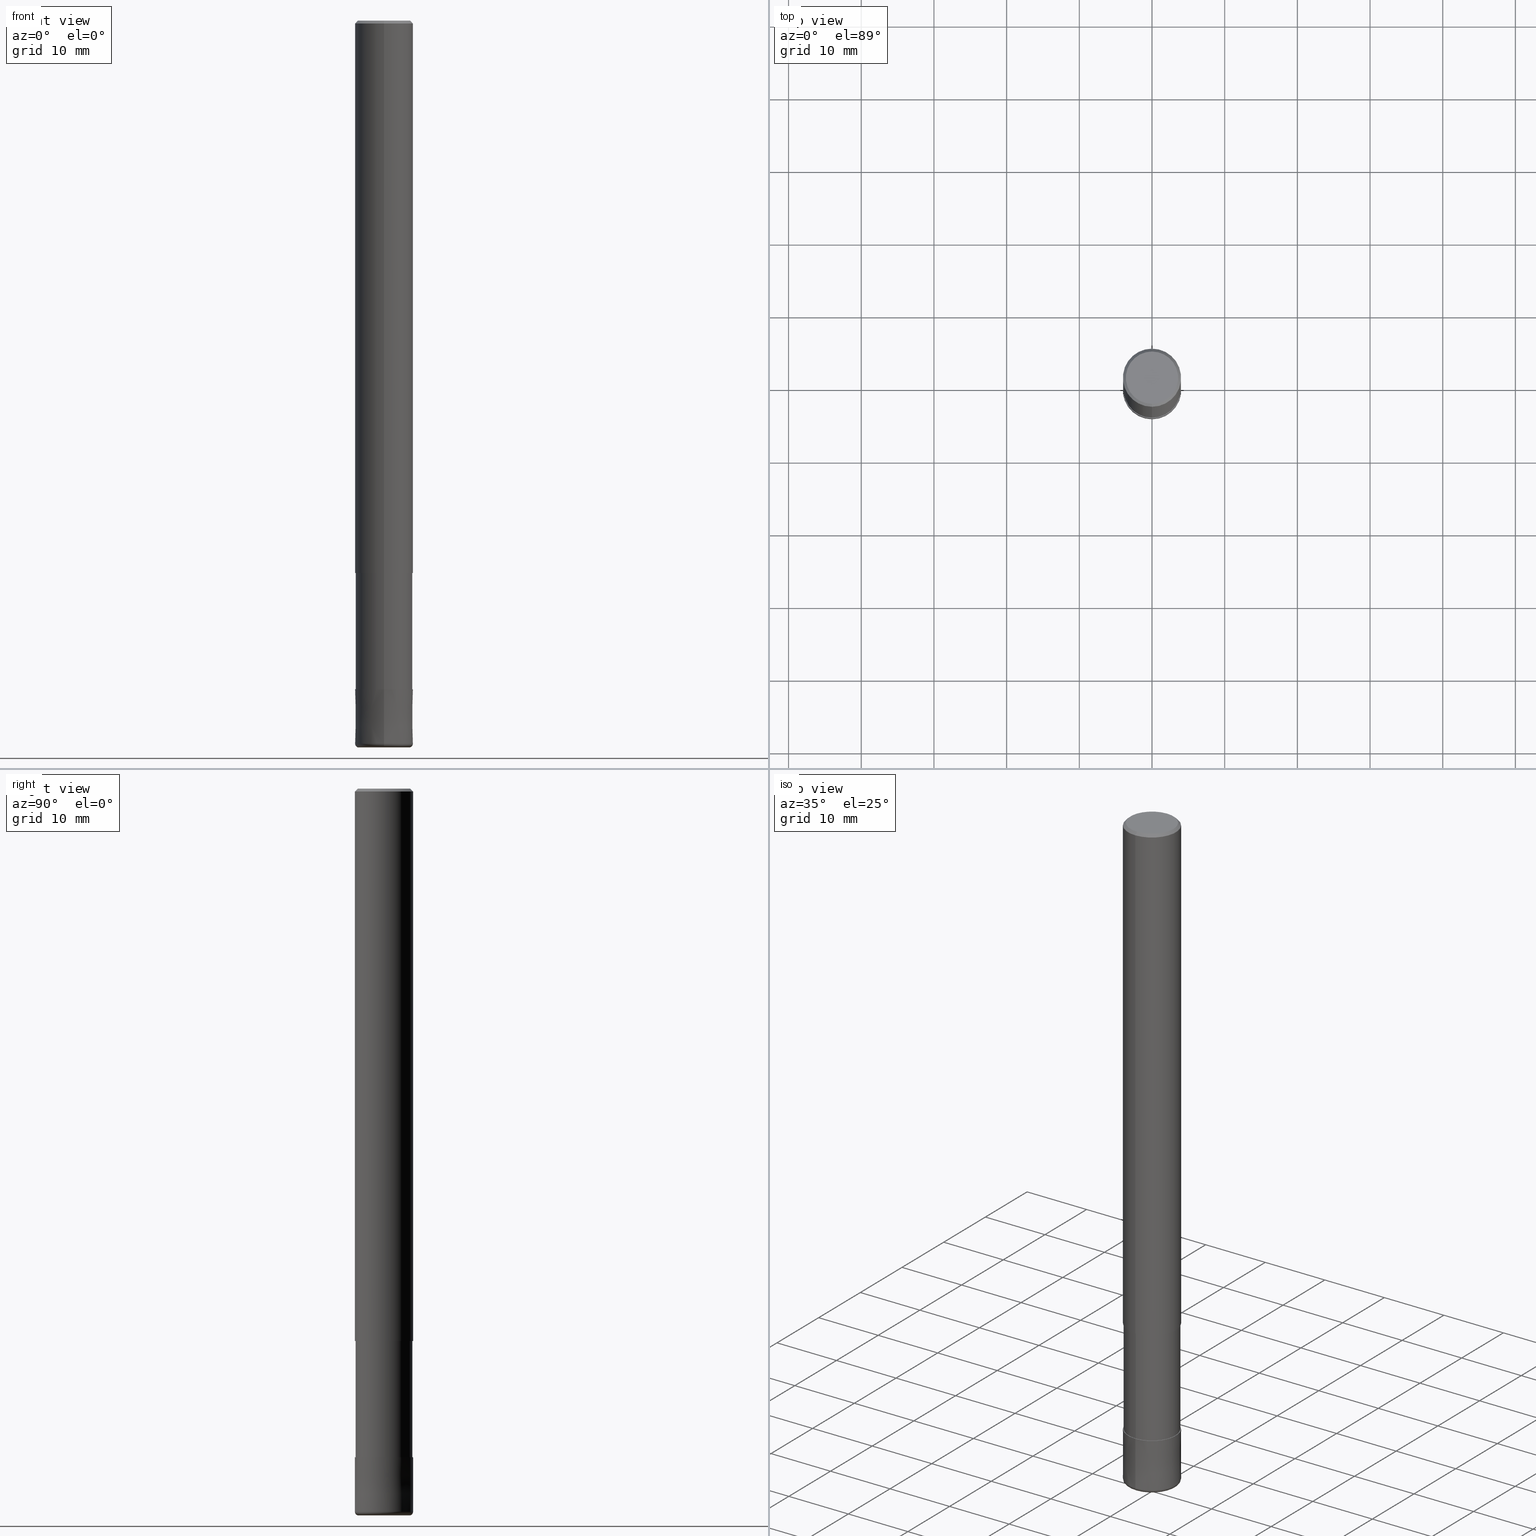
[diagram: canonical four-view strip — front | top / right | iso, engineering-drawing reading convention]
A machine part, canonical four-view strip (front | top / right | iso — engineering-drawing reading convention). The complete STEP part file that produces these views, byte-faithful:
ISO-10303-21;
HEADER;
FILE_DESCRIPTION(('no description'),'unknown implementation level');
FILE_NAME('HRRS4080-05-24-Huellk.stp','  ',('CIMSOURCE GmbH'),('CADClick - KiM GmbH - www.kimweb.de'),'unknown preprocess','ACIS','unknown authorization');
FILE_SCHEMA(('automotive_design'));
ENDSEC;
DATA;
#1=MECHANICAL_DESIGN_GEOMETRIC_PRESENTATION_REPRESENTATION(' ',(#14,#15,#16,#17,#18,#19,#20,#21,#22,#23,#24,#25,#26,#27,#28,#29,#30,#31,#32,#33,#34,#35,#36,#37,#38,#39,#40,#41,#42,#43,#44,#45,#46,#47,#48,#49,#50,#51,#52,#53,#54,#55,#56,#57,#58,#59,#60,#61,#62,#63,#64,#65,#66,#67,#68,#69,#70,#71,#72),#10);
#2=PRODUCT_DEFINITION_CONTEXT('',#73,'design');
#3=APPLICATION_PROTOCOL_DEFINITION('INTERNATIONAL STANDARD','automotive_design',1994,#73);
#4=PRODUCT_CATEGORY_RELATIONSHIP('NONE','NONE',#74,#75);
#5=SHAPE_DEFINITION_REPRESENTATION(#76,#77);
#6=PRODUCT_DEFINITION_CONTEXT('',#78,'design');
#7=APPLICATION_PROTOCOL_DEFINITION('INTERNATIONAL STANDARD','automotive_design',1994,#78);
#8=PRODUCT_CATEGORY_RELATIONSHIP('NONE','NONE',#79,#80);
#9=SHAPE_DEFINITION_REPRESENTATION(#81,#82);
#10= (GEOMETRIC_REPRESENTATION_CONTEXT(3)GLOBAL_UNCERTAINTY_ASSIGNED_CONTEXT((#85))GLOBAL_UNIT_ASSIGNED_CONTEXT((#87,#88,#89))REPRESENTATION_CONTEXT('NONE','WORKSPACE'));
#14=STYLED_ITEM('',(#91),#92);
#15=STYLED_ITEM('',(#93),#94);
#16=STYLED_ITEM('',(#95),#96);
#17=STYLED_ITEM('',(#97),#98);
#18=STYLED_ITEM('',(#99),#100);
#19=STYLED_ITEM('',(#101),#102);
#20=STYLED_ITEM('',(#103),#104);
#21=STYLED_ITEM('',(#105),#106);
#22=STYLED_ITEM('',(#107),#108);
#23=STYLED_ITEM('',(#109),#110);
#24=STYLED_ITEM('',(#111),#112);
#25=STYLED_ITEM('',(#113),#114);
#26=STYLED_ITEM('',(#115),#116);
#27=STYLED_ITEM('',(#117),#118);
#28=STYLED_ITEM('',(#119),#120);
#29=STYLED_ITEM('',(#121),#122);
#30=STYLED_ITEM('',(#123),#124);
#31=STYLED_ITEM('',(#125),#126);
#32=STYLED_ITEM('',(#127),#128);
#33=STYLED_ITEM('',(#129),#130);
#34=STYLED_ITEM('',(#131),#132);
#35=STYLED_ITEM('',(#133),#134);
#36=STYLED_ITEM('',(#135),#136);
#37=STYLED_ITEM('',(#137),#138);
#38=STYLED_ITEM('',(#139),#140);
#39=STYLED_ITEM('',(#141),#142);
#40=STYLED_ITEM('',(#143),#144);
#41=STYLED_ITEM('',(#145),#146);
#42=STYLED_ITEM('',(#147),#148);
#43=STYLED_ITEM('',(#149),#150);
#44=STYLED_ITEM('',(#151),#152);
#45=STYLED_ITEM('',(#153),#154);
#46=STYLED_ITEM('',(#155),#156);
#47=STYLED_ITEM('',(#157),#158);
#48=STYLED_ITEM('',(#159),#160);
#49=STYLED_ITEM('',(#161),#162);
#50=STYLED_ITEM('',(#163),#164);
#51=STYLED_ITEM('',(#165),#166);
#52=STYLED_ITEM('',(#167),#168);
#53=STYLED_ITEM('',(#169),#170);
#54=STYLED_ITEM('',(#171),#172);
#55=STYLED_ITEM('',(#173),#174);
#56=STYLED_ITEM('',(#175),#176);
#57=STYLED_ITEM('',(#177),#178);
#58=STYLED_ITEM('',(#179),#180);
#59=STYLED_ITEM('',(#181),#182);
#60=STYLED_ITEM('',(#183),#184);
#61=STYLED_ITEM('',(#185),#186);
#62=STYLED_ITEM('',(#187),#188);
#63=STYLED_ITEM('',(#189),#190);
#64=STYLED_ITEM('',(#191),#192);
#65=STYLED_ITEM('',(#193),#194);
#66=STYLED_ITEM('',(#195),#196);
#67=STYLED_ITEM('',(#197),#198);
#68=STYLED_ITEM('',(#199),#200);
#69=STYLED_ITEM('',(#201),#202);
#70=STYLED_ITEM('',(#203),#204);
#71=STYLED_ITEM('',(#205),#206);
#72=STYLED_ITEM('',(#207),#208);
#73=APPLICATION_CONTEXT(' ');
#74=PRODUCT_CATEGORY('part','NONE');
#75=PRODUCT_RELATED_PRODUCT_CATEGORY('detail',' ',(#209));
#76=PRODUCT_DEFINITION_SHAPE('NONE','NONE',#210);
#77=ADVANCED_BREP_SHAPE_REPRESENTATION('1',(#128,#211),#10);
#78=APPLICATION_CONTEXT(' ');
#79=PRODUCT_CATEGORY('part','NONE');
#80=PRODUCT_RELATED_PRODUCT_CATEGORY('detail',' ',(#212));
#81=PRODUCT_DEFINITION_SHAPE('NONE','NONE',#213);
#82=ADVANCED_BREP_SHAPE_REPRESENTATION('2',(#140,#214),#10);
#85=UNCERTAINTY_MEASURE_WITH_UNIT(LENGTH_MEASURE(1.0E-006),#87,'','');
#87= (CONVERSION_BASED_UNIT('MILLIMETRE',#217)LENGTH_UNIT()NAMED_UNIT(#220));
#88= (NAMED_UNIT(#222)PLANE_ANGLE_UNIT()SI_UNIT($,.RADIAN.));
#89= (NAMED_UNIT(#222)SOLID_ANGLE_UNIT()SI_UNIT($,.STERADIAN.));
#91=PRESENTATION_STYLE_ASSIGNMENT((#228));
#92=EDGE_CURVE('',#102,#180,#229,.T.);
#93=PRESENTATION_STYLE_ASSIGNMENT((#230));
#94=EDGE_CURVE('',#178,#124,#231,.T.);
#95=PRESENTATION_STYLE_ASSIGNMENT((#232));
#96=EDGE_CURVE('',#124,#178,#233,.T.);
#97=PRESENTATION_STYLE_ASSIGNMENT((#234));
#98=EDGE_CURVE('',#146,#154,#235,.T.);
#99=PRESENTATION_STYLE_ASSIGNMENT((#236));
#100=ADVANCED_FACE('',(#237),#238,.T.);
#101=PRESENTATION_STYLE_ASSIGNMENT((#239));
#102=VERTEX_POINT('',#240);
#103=PRESENTATION_STYLE_ASSIGNMENT((#241));
#104=EDGE_CURVE('',#172,#204,#242,.T.);
#105=PRESENTATION_STYLE_ASSIGNMENT((#243));
#106=ADVANCED_FACE('',(#244),#245,.T.);
#107=PRESENTATION_STYLE_ASSIGNMENT((#246));
#108=ADVANCED_FACE('',(#247),#248,.T.);
#109=PRESENTATION_STYLE_ASSIGNMENT((#249));
#110=ADVANCED_FACE('',(#250),#251,.T.);
#111=PRESENTATION_STYLE_ASSIGNMENT((#252));
#112=ADVANCED_FACE('',(#253),#254,.T.);
#113=PRESENTATION_STYLE_ASSIGNMENT((#255));
#114=EDGE_CURVE('',#184,#202,#256,.T.);
#115=PRESENTATION_STYLE_ASSIGNMENT((#257));
#116=EDGE_CURVE('',#204,#152,#258,.T.);
#117=PRESENTATION_STYLE_ASSIGNMENT((#259));
#118=EDGE_CURVE('',#102,#190,#260,.T.);
#119=PRESENTATION_STYLE_ASSIGNMENT((#261));
#120=VERTEX_POINT('',#262);
#121=PRESENTATION_STYLE_ASSIGNMENT((#263));
#122=EDGE_CURVE('',#196,#120,#264,.T.);
#123=PRESENTATION_STYLE_ASSIGNMENT((#265));
#124=VERTEX_POINT('',#266);
#125=PRESENTATION_STYLE_ASSIGNMENT((#267));
#126=ADVANCED_FACE('',(#268),#269,.T.);
#127=PRESENTATION_STYLE_ASSIGNMENT((#270));
#128=MANIFOLD_SOLID_BREP('1',#271);
#129=PRESENTATION_STYLE_ASSIGNMENT((#272));
#130=EDGE_CURVE('',#196,#150,#273,.T.);
#131=PRESENTATION_STYLE_ASSIGNMENT((#274));
#132=EDGE_CURVE('',#202,#184,#275,.T.);
#133=PRESENTATION_STYLE_ASSIGNMENT((#276));
#134=EDGE_CURVE('',#120,#196,#277,.T.);
#135=PRESENTATION_STYLE_ASSIGNMENT((#278));
#136=ADVANCED_FACE('',(#279),#280,.T.);
#137=PRESENTATION_STYLE_ASSIGNMENT((#281));
#138=EDGE_CURVE('',#172,#150,#282,.T.);
#139=PRESENTATION_STYLE_ASSIGNMENT((#283));
#140=MANIFOLD_SOLID_BREP('2',#284);
#141=PRESENTATION_STYLE_ASSIGNMENT((#285));
#142=ADVANCED_FACE('',(#286,#287),#288,.T.);
#143=PRESENTATION_STYLE_ASSIGNMENT((#289));
#144=ADVANCED_FACE('',(#290),#291,.T.);
#145=PRESENTATION_STYLE_ASSIGNMENT((#292));
#146=VERTEX_POINT('',#293);
#147=PRESENTATION_STYLE_ASSIGNMENT((#294));
#148=ADVANCED_FACE('',(#295),#296,.T.);
#149=PRESENTATION_STYLE_ASSIGNMENT((#297));
#150=VERTEX_POINT('',#298);
#151=PRESENTATION_STYLE_ASSIGNMENT((#299));
#152=VERTEX_POINT('',#300);
#153=PRESENTATION_STYLE_ASSIGNMENT((#301));
#154=VERTEX_POINT('',#302);
#155=PRESENTATION_STYLE_ASSIGNMENT((#303));
#156=EDGE_CURVE('',#152,#150,#304,.T.);
#157=PRESENTATION_STYLE_ASSIGNMENT((#305));
#158=ADVANCED_FACE('',(#306),#307,.T.);
#159=PRESENTATION_STYLE_ASSIGNMENT((#308));
#160=ADVANCED_FACE('',(#309),#310,.T.);
#161=PRESENTATION_STYLE_ASSIGNMENT((#311));
#162=EDGE_CURVE('',#154,#202,#312,.T.);
#163=PRESENTATION_STYLE_ASSIGNMENT((#313));
#164=EDGE_CURVE('',#180,#102,#314,.T.);
#165=PRESENTATION_STYLE_ASSIGNMENT((#315));
#166=EDGE_CURVE('',#172,#120,#316,.T.);
#167=PRESENTATION_STYLE_ASSIGNMENT((#317));
#168=EDGE_CURVE('',#152,#204,#318,.T.);
#169=PRESENTATION_STYLE_ASSIGNMENT((#319));
#170=EDGE_CURVE('',#194,#190,#320,.T.);
#171=PRESENTATION_STYLE_ASSIGNMENT((#321));
#172=VERTEX_POINT('',#322);
#173=PRESENTATION_STYLE_ASSIGNMENT((#323));
#174=EDGE_CURVE('',#180,#178,#324,.T.);
#175=PRESENTATION_STYLE_ASSIGNMENT((#325));
#176=ADVANCED_FACE('',(#326),#327,.T.);
#177=PRESENTATION_STYLE_ASSIGNMENT((#328));
#178=VERTEX_POINT('',#329);
#179=PRESENTATION_STYLE_ASSIGNMENT((#330));
#180=VERTEX_POINT('',#331);
#181=PRESENTATION_STYLE_ASSIGNMENT((#332));
#182=ADVANCED_FACE('',(#333),#334,.T.);
#183=PRESENTATION_STYLE_ASSIGNMENT((#335));
#184=VERTEX_POINT('',#336);
#185=PRESENTATION_STYLE_ASSIGNMENT((#337));
#186=ADVANCED_FACE('',(#338),#339,.T.);
#187=PRESENTATION_STYLE_ASSIGNMENT((#340));
#188=EDGE_CURVE('',#124,#102,#341,.T.);
#189=PRESENTATION_STYLE_ASSIGNMENT((#342));
#190=VERTEX_POINT('',#343);
#191=PRESENTATION_STYLE_ASSIGNMENT((#344));
#192=EDGE_CURVE('',#190,#194,#345,.T.);
#193=PRESENTATION_STYLE_ASSIGNMENT((#346));
#194=VERTEX_POINT('',#347);
#195=PRESENTATION_STYLE_ASSIGNMENT((#348));
#196=VERTEX_POINT('',#349);
#197=PRESENTATION_STYLE_ASSIGNMENT((#350));
#198=EDGE_CURVE('',#150,#172,#351,.T.);
#199=PRESENTATION_STYLE_ASSIGNMENT((#352));
#200=EDGE_CURVE('',#154,#146,#353,.T.);
#201=PRESENTATION_STYLE_ASSIGNMENT((#354));
#202=VERTEX_POINT('',#355);
#203=PRESENTATION_STYLE_ASSIGNMENT((#356));
#204=VERTEX_POINT('',#357);
#205=PRESENTATION_STYLE_ASSIGNMENT((#358));
#206=EDGE_CURVE('',#184,#146,#359,.T.);
#207=PRESENTATION_STYLE_ASSIGNMENT((#360));
#208=EDGE_CURVE('',#194,#180,#361,.T.);
#209=PRODUCT('1','1','PART-1-DESC',(#362));
#210=PRODUCT_DEFINITION('NONE','NONE',#363,#2);
#211=AXIS2_PLACEMENT_3D('',#364,#365,#366);
#212=PRODUCT('2','2','PART-2-DESC',(#367));
#213=PRODUCT_DEFINITION('NONE','NONE',#368,#6);
#214=AXIS2_PLACEMENT_3D('',#369,#370,#371);
#217=LENGTH_MEASURE_WITH_UNIT(LENGTH_MEASURE(1.0),#372);
#220=DIMENSIONAL_EXPONENTS(1.0,0.0,0.0,0.0,0.0,0.0,0.0);
#222=DIMENSIONAL_EXPONENTS(0.0,0.0,0.0,0.0,0.0,0.0,0.0);
#228=CURVE_STYLE('',#373,POSITIVE_LENGTH_MEASURE(1.0E-006),#374);
#229=CIRCLE('',#375,4.0);
#230=CURVE_STYLE('',#376,POSITIVE_LENGTH_MEASURE(1.0E-006),#377);
#231=CIRCLE('',#378,4.0);
#232=CURVE_STYLE('',#379,POSITIVE_LENGTH_MEASURE(1.0E-006),#380);
#233=CIRCLE('',#381,4.0);
#234=CURVE_STYLE('',#382,POSITIVE_LENGTH_MEASURE(1.0E-006),#383);
#235=CIRCLE('',#384,3.90995);
#236=SURFACE_STYLE_USAGE(.BOTH.,#385);
#237=FACE_OUTER_BOUND('',#386,.T.);
#238=TOROIDAL_SURFACE('',#387,3.5,0.500000000000001);
#239=POINT_STYLE(' ',#388,POSITIVE_LENGTH_MEASURE(1.0E-006),#389);
#240=CARTESIAN_POINT('',(4.89842541528951E-016,-4.0,-0.400000000000006));
#241=CURVE_STYLE('',#390,POSITIVE_LENGTH_MEASURE(1.0E-006),#391);
#242=LINE('',#392,#393);
#243=SURFACE_STYLE_USAGE(.BOTH.,#394);
#244=FACE_OUTER_BOUND('',#395,.T.);
#245=PLANE('',#396);
#246=SURFACE_STYLE_USAGE(.BOTH.,#397);
#247=FACE_OUTER_BOUND('',#398,.T.);
#248=CONICAL_SURFACE('',#399,3.8,0.785398163397441);
#249=SURFACE_STYLE_USAGE(.BOTH.,#400);
#250=FACE_OUTER_BOUND('',#401,.T.);
#251=CYLINDRICAL_SURFACE('',#402,4.0);
#252=SURFACE_STYLE_USAGE(.BOTH.,#403);
#253=FACE_OUTER_BOUND('',#404,.T.);
#254=PLANE('',#405);
#255=CURVE_STYLE('',#406,POSITIVE_LENGTH_MEASURE(1.0E-006),#407);
#256=CIRCLE('',#408,3.90995);
#257=CURVE_STYLE('',#409,POSITIVE_LENGTH_MEASURE(1.0E-006),#410);
#258=CIRCLE('',#411,3.9999);
#259=CURVE_STYLE('',#412,POSITIVE_LENGTH_MEASURE(1.0E-006),#413);
#260=LINE('',#414,#415);
#261=POINT_STYLE(' ',#416,POSITIVE_LENGTH_MEASURE(1.0E-006),#417);
#262=CARTESIAN_POINT('',(4.28612223837832E-016,-3.5,-100.0));
#263=CURVE_STYLE('',#418,POSITIVE_LENGTH_MEASURE(1.0E-006),#419);
#264=CIRCLE('',#420,3.5);
#265=POINT_STYLE(' ',#421,POSITIVE_LENGTH_MEASURE(1.0E-006),#422);
#266=CARTESIAN_POINT('',(4.89842541528951E-016,-4.0,-76.0));
#267=SURFACE_STYLE_USAGE(.BOTH.,#423);
#268=FACE_OUTER_BOUND('',#424,.T.);
#269=CONICAL_SURFACE('',#425,3.8,0.785398163397441);
#270=SURFACE_STYLE_USAGE(.BOTH.,#426);
#271=CLOSED_SHELL('',(#148,#144,#108,#142,#182,#126,#110,#160,#106));
#272=CURVE_STYLE('',#427,POSITIVE_LENGTH_MEASURE(1.0E-006),#428);
#273=CIRCLE('',#429,0.500000000000001);
#274=CURVE_STYLE('',#430,POSITIVE_LENGTH_MEASURE(1.0E-006),#431);
#275=CIRCLE('',#432,3.90995);
#276=CURVE_STYLE('',#433,POSITIVE_LENGTH_MEASURE(1.0E-006),#434);
#277=CIRCLE('',#435,3.5);
#278=SURFACE_STYLE_USAGE(.BOTH.,#436);
#279=FACE_OUTER_BOUND('',#437,.T.);
#280=PLANE('',#438);
#281=CURVE_STYLE('',#439,POSITIVE_LENGTH_MEASURE(1.0E-006),#440);
#282=CIRCLE('',#441,4.0);
#283=SURFACE_STYLE_USAGE(.BOTH.,#442);
#284=CLOSED_SHELL('',(#176,#158,#136,#186,#100,#112));
#285=SURFACE_STYLE_USAGE(.BOTH.,#443);
#286=FACE_OUTER_BOUND('',#444,.T.);
#287=FACE_BOUND('',#445,.T.);
#288=PLANE('',#446);
#289=SURFACE_STYLE_USAGE(.BOTH.,#447);
#290=FACE_OUTER_BOUND('',#448,.T.);
#291=CYLINDRICAL_SURFACE('',#449,4.0);
#292=POINT_STYLE(' ',#450,POSITIVE_LENGTH_MEASURE(1.0E-006),#451);
#293=CARTESIAN_POINT('',(0.0,3.90995,-92.0));
#294=SURFACE_STYLE_USAGE(.BOTH.,#452);
#295=FACE_OUTER_BOUND('',#453,.T.);
#296=CYLINDRICAL_SURFACE('',#454,3.90995);
#297=POINT_STYLE(' ',#455,POSITIVE_LENGTH_MEASURE(1.0E-006),#456);
#298=CARTESIAN_POINT('',(0.0,4.0,-99.5));
#299=POINT_STYLE(' ',#457,POSITIVE_LENGTH_MEASURE(1.0E-006),#458);
#300=CARTESIAN_POINT('',(0.0,3.9999,-92.0));
#301=POINT_STYLE(' ',#459,POSITIVE_LENGTH_MEASURE(1.0E-006),#460);
#302=CARTESIAN_POINT('',(4.7881496131278E-016,-3.90995,-92.0));
#303=CURVE_STYLE('',#461,POSITIVE_LENGTH_MEASURE(1.0E-006),#462);
#304=LINE('',#463,#464);
#305=SURFACE_STYLE_USAGE(.BOTH.,#465);
#306=FACE_OUTER_BOUND('',#466,.T.);
#307=CONICAL_SURFACE('',#467,3.99995,1.33333333325713E-005);
#308=SURFACE_STYLE_USAGE(.BOTH.,#468);
#309=FACE_OUTER_BOUND('',#469,.T.);
#310=CYLINDRICAL_SURFACE('',#470,3.90995);
#311=CURVE_STYLE('',#471,POSITIVE_LENGTH_MEASURE(1.0E-006),#472);
#312=LINE('',#473,#474);
#313=CURVE_STYLE('',#475,POSITIVE_LENGTH_MEASURE(1.0E-006),#476);
#314=CIRCLE('',#477,4.0);
#315=CURVE_STYLE('',#478,POSITIVE_LENGTH_MEASURE(1.0E-006),#479);
#316=CIRCLE('',#480,0.500000000000001);
#317=CURVE_STYLE('',#481,POSITIVE_LENGTH_MEASURE(1.0E-006),#482);
#318=CIRCLE('',#483,3.9999);
#319=CURVE_STYLE('',#484,POSITIVE_LENGTH_MEASURE(1.0E-006),#485);
#320=CIRCLE('',#486,3.6);
#321=POINT_STYLE(' ',#487,POSITIVE_LENGTH_MEASURE(1.0E-006),#488);
#322=CARTESIAN_POINT('',(4.89842541528951E-016,-4.0,-99.5));
#323=CURVE_STYLE('',#489,POSITIVE_LENGTH_MEASURE(1.0E-006),#490);
#324=LINE('',#491,#492);
#325=SURFACE_STYLE_USAGE(.BOTH.,#493);
#326=FACE_OUTER_BOUND('',#494,.T.);
#327=TOROIDAL_SURFACE('',#495,3.5,0.500000000000001);
#328=POINT_STYLE(' ',#496,POSITIVE_LENGTH_MEASURE(1.0E-006),#497);
#329=CARTESIAN_POINT('',(0.0,4.0,-76.0));
#330=POINT_STYLE(' ',#498,POSITIVE_LENGTH_MEASURE(1.0E-006),#499);
#331=CARTESIAN_POINT('',(0.0,4.0,-0.400000000000006));
#332=SURFACE_STYLE_USAGE(.BOTH.,#500);
#333=FACE_OUTER_BOUND('',#501,.T.);
#334=PLANE('',#502);
#335=POINT_STYLE(' ',#503,POSITIVE_LENGTH_MEASURE(1.0E-006),#504);
#336=CARTESIAN_POINT('',(0.0,3.90995,-76.0));
#337=SURFACE_STYLE_USAGE(.BOTH.,#505);
#338=FACE_OUTER_BOUND('',#506,.T.);
#339=CONICAL_SURFACE('',#507,3.99995,1.33333333325713E-005);
#340=CURVE_STYLE('',#508,POSITIVE_LENGTH_MEASURE(1.0E-006),#509);
#341=LINE('',#510,#511);
#342=POINT_STYLE(' ',#512,POSITIVE_LENGTH_MEASURE(1.0E-006),#513);
#343=CARTESIAN_POINT('',(4.40858287376056E-016,-3.6,0.0));
#344=CURVE_STYLE('',#514,POSITIVE_LENGTH_MEASURE(1.0E-006),#515);
#345=CIRCLE('',#516,3.6);
#346=POINT_STYLE(' ',#517,POSITIVE_LENGTH_MEASURE(1.0E-006),#518);
#347=CARTESIAN_POINT('',(0.0,3.6,0.0));
#348=POINT_STYLE(' ',#519,POSITIVE_LENGTH_MEASURE(1.0E-006),#520);
#349=CARTESIAN_POINT('',(0.0,3.5,-100.0));
#350=CURVE_STYLE('',#521,POSITIVE_LENGTH_MEASURE(1.0E-006),#522);
#351=CIRCLE('',#523,4.0);
#352=CURVE_STYLE('',#524,POSITIVE_LENGTH_MEASURE(1.0E-006),#525);
#353=CIRCLE('',#526,3.90995);
#354=POINT_STYLE(' ',#527,POSITIVE_LENGTH_MEASURE(1.0E-006),#528);
#355=CARTESIAN_POINT('',(4.7881496131278E-016,-3.90995,-76.0));
#356=POINT_STYLE(' ',#529,POSITIVE_LENGTH_MEASURE(1.0E-006),#530);
#357=CARTESIAN_POINT('',(4.89830295465413E-016,-3.9999,-92.0));
#358=CURVE_STYLE('',#531,POSITIVE_LENGTH_MEASURE(1.0E-006),#532);
#359=LINE('',#533,#534);
#360=CURVE_STYLE('',#535,POSITIVE_LENGTH_MEASURE(1.0E-006),#536);
#361=LINE('',#537,#538);
#362=PRODUCT_CONTEXT('',#73,'mechanical');
#363=PRODUCT_DEFINITION_FORMATION_WITH_SPECIFIED_SOURCE(' ','NONE',#209,.NOT_KNOWN.);
#364=CARTESIAN_POINT('',(0.0,0.0,0.0));
#365=DIRECTION('',(0.0,0.0,1.0));
#366=DIRECTION('',(1.0,0.0,0.0));
#367=PRODUCT_CONTEXT('',#78,'mechanical');
#368=PRODUCT_DEFINITION_FORMATION_WITH_SPECIFIED_SOURCE(' ','NONE',#212,.NOT_KNOWN.);
#369=CARTESIAN_POINT('',(0.0,0.0,0.0));
#370=DIRECTION('',(0.0,0.0,1.0));
#371=DIRECTION('',(1.0,0.0,0.0));
#372= (NAMED_UNIT(#220)LENGTH_UNIT()SI_UNIT(.MILLI.,.METRE.));
#373=DRAUGHTING_PRE_DEFINED_CURVE_FONT('continuous');
#374=COLOUR_RGB('',0.498039215803146,0.498039215803146,0.498039215803146);
#375=AXIS2_PLACEMENT_3D('',#540,#541,#542);
#376=DRAUGHTING_PRE_DEFINED_CURVE_FONT('continuous');
#377=COLOUR_RGB('',0.498039215803146,0.498039215803146,0.498039215803146);
#378=AXIS2_PLACEMENT_3D('',#543,#544,#545);
#379=DRAUGHTING_PRE_DEFINED_CURVE_FONT('continuous');
#380=COLOUR_RGB('',0.498039215803146,0.498039215803146,0.498039215803146);
#381=AXIS2_PLACEMENT_3D('',#546,#547,#548);
#382=DRAUGHTING_PRE_DEFINED_CURVE_FONT('continuous');
#383=COLOUR_RGB('',0.498039215803146,0.498039215803146,0.498039215803146);
#384=AXIS2_PLACEMENT_3D('',#549,#550,#551);
#385=SURFACE_SIDE_STYLE('',(#552));
#386=EDGE_LOOP('',(#553,#554,#555,#556));
#387=AXIS2_PLACEMENT_3D('',#557,#558,#559);
#388=PRE_DEFINED_MARKER('');
#389=COLOUR_RGB('',0.498039215803146,0.498039215803146,0.498039215803146);
#390=DRAUGHTING_PRE_DEFINED_CURVE_FONT('continuous');
#391=COLOUR_RGB('',0.800000011920929,0.800000011920929,0.800000011920929);
#392=CARTESIAN_POINT('',(4.89836418497182E-016,-3.99995,-95.75));
#393=VECTOR('',#560,1.0);
#394=SURFACE_SIDE_STYLE('',(#561));
#395=EDGE_LOOP('',(#562,#563));
#396=AXIS2_PLACEMENT_3D('',#564,#565,#566);
#397=SURFACE_SIDE_STYLE('',(#567));
#398=EDGE_LOOP('',(#568,#569,#570,#571));
#399=AXIS2_PLACEMENT_3D('',#572,#573,#574);
#400=SURFACE_SIDE_STYLE('',(#575));
#401=EDGE_LOOP('',(#576,#577,#578,#579));
#402=AXIS2_PLACEMENT_3D('',#580,#581,#582);
#403=SURFACE_SIDE_STYLE('',(#583));
#404=EDGE_LOOP('',(#584,#585));
#405=AXIS2_PLACEMENT_3D('',#586,#587,#588);
#406=DRAUGHTING_PRE_DEFINED_CURVE_FONT('continuous');
#407=COLOUR_RGB('',0.498039215803146,0.498039215803146,0.498039215803146);
#408=AXIS2_PLACEMENT_3D('',#589,#590,#591);
#409=DRAUGHTING_PRE_DEFINED_CURVE_FONT('continuous');
#410=COLOUR_RGB('',0.800000011920929,0.800000011920929,0.800000011920929);
#411=AXIS2_PLACEMENT_3D('',#592,#593,#594);
#412=DRAUGHTING_PRE_DEFINED_CURVE_FONT('continuous');
#413=COLOUR_RGB('',0.498039215803146,0.498039215803146,0.498039215803146);
#414=CARTESIAN_POINT('',(4.65350414452503E-016,-3.8,-0.200000000000003));
#415=VECTOR('',#595,1.0);
#416=PRE_DEFINED_MARKER('');
#417=COLOUR_RGB('',0.800000011920929,0.800000011920929,0.800000011920929);
#418=DRAUGHTING_PRE_DEFINED_CURVE_FONT('continuous');
#419=COLOUR_RGB('',0.800000011920929,0.800000011920929,0.800000011920929);
#420=AXIS2_PLACEMENT_3D('',#596,#597,#598);
#421=PRE_DEFINED_MARKER('');
#422=COLOUR_RGB('',0.498039215803146,0.498039215803146,0.498039215803146);
#423=SURFACE_SIDE_STYLE('',(#599));
#424=EDGE_LOOP('',(#600,#601,#602,#603));
#425=AXIS2_PLACEMENT_3D('',#604,#605,#606);
#426=SURFACE_SIDE_STYLE('',(#607));
#427=DRAUGHTING_PRE_DEFINED_CURVE_FONT('continuous');
#428=COLOUR_RGB('',0.800000011920929,0.800000011920929,0.800000011920929);
#429=AXIS2_PLACEMENT_3D('',#608,#609,#610);
#430=DRAUGHTING_PRE_DEFINED_CURVE_FONT('continuous');
#431=COLOUR_RGB('',0.498039215803146,0.498039215803146,0.498039215803146);
#432=AXIS2_PLACEMENT_3D('',#611,#612,#613);
#433=DRAUGHTING_PRE_DEFINED_CURVE_FONT('continuous');
#434=COLOUR_RGB('',0.800000011920929,0.800000011920929,0.800000011920929);
#435=AXIS2_PLACEMENT_3D('',#614,#615,#616);
#436=SURFACE_SIDE_STYLE('',(#617));
#437=EDGE_LOOP('',(#618,#619));
#438=AXIS2_PLACEMENT_3D('',#620,#621,#622);
#439=DRAUGHTING_PRE_DEFINED_CURVE_FONT('continuous');
#440=COLOUR_RGB('',0.800000011920929,0.800000011920929,0.800000011920929);
#441=AXIS2_PLACEMENT_3D('',#623,#624,#625);
#442=SURFACE_SIDE_STYLE('',(#626));
#443=SURFACE_SIDE_STYLE('',(#627));
#444=EDGE_LOOP('',(#628,#629));
#445=EDGE_LOOP('',(#630,#631));
#446=AXIS2_PLACEMENT_3D('',#632,#633,#634);
#447=SURFACE_SIDE_STYLE('',(#635));
#448=EDGE_LOOP('',(#636,#637,#638,#639));
#449=AXIS2_PLACEMENT_3D('',#640,#641,#642);
#450=PRE_DEFINED_MARKER('');
#451=COLOUR_RGB('',0.498039215803146,0.498039215803146,0.498039215803146);
#452=SURFACE_SIDE_STYLE('',(#643));
#453=EDGE_LOOP('',(#644,#645,#646,#647));
#454=AXIS2_PLACEMENT_3D('',#648,#649,#650);
#455=PRE_DEFINED_MARKER('');
#456=COLOUR_RGB('',0.800000011920929,0.800000011920929,0.800000011920929);
#457=PRE_DEFINED_MARKER('');
#458=COLOUR_RGB('',0.800000011920929,0.800000011920929,0.800000011920929);
#459=PRE_DEFINED_MARKER('');
#460=COLOUR_RGB('',0.498039215803146,0.498039215803146,0.498039215803146);
#461=DRAUGHTING_PRE_DEFINED_CURVE_FONT('continuous');
#462=COLOUR_RGB('',0.800000011920929,0.800000011920929,0.800000011920929);
#463=CARTESIAN_POINT('',(-4.89836418497182E-016,3.99995,-95.75));
#464=VECTOR('',#651,1.0);
#465=SURFACE_SIDE_STYLE('',(#652));
#466=EDGE_LOOP('',(#653,#654,#655,#656));
#467=AXIS2_PLACEMENT_3D('',#657,#658,#659);
#468=SURFACE_SIDE_STYLE('',(#660));
#469=EDGE_LOOP('',(#661,#662,#663,#664));
#470=AXIS2_PLACEMENT_3D('',#665,#666,#667);
#471=DRAUGHTING_PRE_DEFINED_CURVE_FONT('continuous');
#472=COLOUR_RGB('',0.498039215803146,0.498039215803146,0.498039215803146);
#473=CARTESIAN_POINT('',(4.7881496131278E-016,-3.90995,-84.0));
#474=VECTOR('',#668,1.0);
#475=DRAUGHTING_PRE_DEFINED_CURVE_FONT('continuous');
#476=COLOUR_RGB('',0.498039215803146,0.498039215803146,0.498039215803146);
#477=AXIS2_PLACEMENT_3D('',#669,#670,#671);
#478=DRAUGHTING_PRE_DEFINED_CURVE_FONT('continuous');
#479=COLOUR_RGB('',0.800000011920929,0.800000011920929,0.800000011920929);
#480=AXIS2_PLACEMENT_3D('',#672,#673,#674);
#481=DRAUGHTING_PRE_DEFINED_CURVE_FONT('continuous');
#482=COLOUR_RGB('',0.800000011920929,0.800000011920929,0.800000011920929);
#483=AXIS2_PLACEMENT_3D('',#675,#676,#677);
#484=DRAUGHTING_PRE_DEFINED_CURVE_FONT('continuous');
#485=COLOUR_RGB('',0.498039215803146,0.498039215803146,0.498039215803146);
#486=AXIS2_PLACEMENT_3D('',#678,#679,#680);
#487=PRE_DEFINED_MARKER('');
#488=COLOUR_RGB('',0.800000011920929,0.800000011920929,0.800000011920929);
#489=DRAUGHTING_PRE_DEFINED_CURVE_FONT('continuous');
#490=COLOUR_RGB('',0.498039215803146,0.498039215803146,0.498039215803146);
#491=CARTESIAN_POINT('',(-4.89842541528951E-016,4.0,-38.2));
#492=VECTOR('',#681,1.0);
#493=SURFACE_SIDE_STYLE('',(#682));
#494=EDGE_LOOP('',(#683,#684,#685,#686));
#495=AXIS2_PLACEMENT_3D('',#687,#688,#689);
#496=PRE_DEFINED_MARKER('');
#497=COLOUR_RGB('',0.498039215803146,0.498039215803146,0.498039215803146);
#498=PRE_DEFINED_MARKER('');
#499=COLOUR_RGB('',0.498039215803146,0.498039215803146,0.498039215803146);
#500=SURFACE_SIDE_STYLE('',(#690));
#501=EDGE_LOOP('',(#691,#692));
#502=AXIS2_PLACEMENT_3D('',#693,#694,#695);
#503=PRE_DEFINED_MARKER('');
#504=COLOUR_RGB('',0.498039215803146,0.498039215803146,0.498039215803146);
#505=SURFACE_SIDE_STYLE('',(#696));
#506=EDGE_LOOP('',(#697,#698,#699,#700));
#507=AXIS2_PLACEMENT_3D('',#701,#702,#703);
#508=DRAUGHTING_PRE_DEFINED_CURVE_FONT('continuous');
#509=COLOUR_RGB('',0.498039215803146,0.498039215803146,0.498039215803146);
#510=CARTESIAN_POINT('',(4.89842541528951E-016,-4.0,-38.2));
#511=VECTOR('',#704,1.0);
#512=PRE_DEFINED_MARKER('');
#513=COLOUR_RGB('',0.498039215803146,0.498039215803146,0.498039215803146);
#514=DRAUGHTING_PRE_DEFINED_CURVE_FONT('continuous');
#515=COLOUR_RGB('',0.498039215803146,0.498039215803146,0.498039215803146);
#516=AXIS2_PLACEMENT_3D('',#705,#706,#707);
#517=PRE_DEFINED_MARKER('');
#518=COLOUR_RGB('',0.498039215803146,0.498039215803146,0.498039215803146);
#519=PRE_DEFINED_MARKER('');
#520=COLOUR_RGB('',0.800000011920929,0.800000011920929,0.800000011920929);
#521=DRAUGHTING_PRE_DEFINED_CURVE_FONT('continuous');
#522=COLOUR_RGB('',0.800000011920929,0.800000011920929,0.800000011920929);
#523=AXIS2_PLACEMENT_3D('',#708,#709,#710);
#524=DRAUGHTING_PRE_DEFINED_CURVE_FONT('continuous');
#525=COLOUR_RGB('',0.498039215803146,0.498039215803146,0.498039215803146);
#526=AXIS2_PLACEMENT_3D('',#711,#712,#713);
#527=PRE_DEFINED_MARKER('');
#528=COLOUR_RGB('',0.498039215803146,0.498039215803146,0.498039215803146);
#529=PRE_DEFINED_MARKER('');
#530=COLOUR_RGB('',0.800000011920929,0.800000011920929,0.800000011920929);
#531=DRAUGHTING_PRE_DEFINED_CURVE_FONT('continuous');
#532=COLOUR_RGB('',0.498039215803146,0.498039215803146,0.498039215803146);
#533=CARTESIAN_POINT('',(-4.7881496131278E-016,3.90995,-84.0));
#534=VECTOR('',#714,1.0);
#535=DRAUGHTING_PRE_DEFINED_CURVE_FONT('continuous');
#536=COLOUR_RGB('',0.498039215803146,0.498039215803146,0.498039215803146);
#537=CARTESIAN_POINT('',(-4.65350414452503E-016,3.8,-0.200000000000003));
#538=VECTOR('',#715,1.0);
#540=CARTESIAN_POINT('',(0.0,0.0,-0.400000000000006));
#541=DIRECTION('',(0.0,0.0,-1.0));
#542=DIRECTION('',(0.0,1.0,0.0));
#543=CARTESIAN_POINT('',(0.0,0.0,-76.0));
#544=DIRECTION('',(0.0,0.0,-1.0));
#545=DIRECTION('',(0.0,1.0,0.0));
#546=CARTESIAN_POINT('',(0.0,0.0,-76.0));
#547=DIRECTION('',(0.0,0.0,-1.0));
#548=DIRECTION('',(0.0,1.0,0.0));
#549=CARTESIAN_POINT('',(0.0,0.0,-92.0));
#550=DIRECTION('',(0.0,0.0,-1.0));
#551=DIRECTION('',(0.0,1.0,0.0));
#552=SURFACE_STYLE_FILL_AREA(#716);
#553=ORIENTED_EDGE('',*,*,#166,.T.);
#554=ORIENTED_EDGE('',*,*,#122,.F.);
#555=ORIENTED_EDGE('',*,*,#130,.T.);
#556=ORIENTED_EDGE('',*,*,#198,.T.);
#557=CARTESIAN_POINT('',(0.0,0.0,-99.5));
#558=DIRECTION('',(0.0,0.0,-1.0));
#559=DIRECTION('',(0.0,-1.0,0.0));
#560=DIRECTION('',(-1.63280847162148E-021,1.33333333321763E-005,0.999999999911111));
#561=SURFACE_STYLE_FILL_AREA(#717);
#562=ORIENTED_EDGE('',*,*,#98,.T.);
#563=ORIENTED_EDGE('',*,*,#200,.T.);
#564=CARTESIAN_POINT('',(0.0,1.954975,-92.0));
#565=DIRECTION('',(0.0,0.0,-1.0));
#566=DIRECTION('',(0.0,1.0,0.0));
#567=SURFACE_STYLE_FILL_AREA(#718);
#568=ORIENTED_EDGE('',*,*,#208,.F.);
#569=ORIENTED_EDGE('',*,*,#170,.T.);
#570=ORIENTED_EDGE('',*,*,#118,.F.);
#571=ORIENTED_EDGE('',*,*,#164,.F.);
#572=CARTESIAN_POINT('',(0.0,0.0,-0.200000000000003));
#573=DIRECTION('',(0.0,-0.0,-1.0));
#574=DIRECTION('',(0.0,1.0,0.0));
#575=SURFACE_STYLE_FILL_AREA(#719);
#576=ORIENTED_EDGE('',*,*,#174,.T.);
#577=ORIENTED_EDGE('',*,*,#96,.F.);
#578=ORIENTED_EDGE('',*,*,#188,.T.);
#579=ORIENTED_EDGE('',*,*,#92,.T.);
#580=CARTESIAN_POINT('',(0.0,0.0,-38.2));
#581=DIRECTION('',(-0.0,-0.0,1.0));
#582=DIRECTION('',(0.0,1.0,0.0));
#583=SURFACE_STYLE_FILL_AREA(#720);
#584=ORIENTED_EDGE('',*,*,#122,.T.);
#585=ORIENTED_EDGE('',*,*,#134,.T.);
#586=CARTESIAN_POINT('',(0.0,1.75,-100.0));
#587=DIRECTION('',(0.0,0.0,-1.0));
#588=DIRECTION('',(0.0,1.0,0.0));
#589=CARTESIAN_POINT('',(0.0,0.0,-76.0));
#590=DIRECTION('',(0.0,0.0,-1.0));
#591=DIRECTION('',(0.0,1.0,0.0));
#592=CARTESIAN_POINT('',(0.0,0.0,-92.0));
#593=DIRECTION('',(0.0,0.0,-1.0));
#594=DIRECTION('',(0.0,1.0,0.0));
#595=DIRECTION('',(-8.65927457071929E-017,0.707106781186542,0.707106781186553));
#596=CARTESIAN_POINT('',(0.0,0.0,-100.0));
#597=DIRECTION('',(0.0,0.0,-1.0));
#598=DIRECTION('',(0.0,1.0,0.0));
#599=SURFACE_STYLE_FILL_AREA(#721);
#600=ORIENTED_EDGE('',*,*,#208,.T.);
#601=ORIENTED_EDGE('',*,*,#92,.F.);
#602=ORIENTED_EDGE('',*,*,#118,.T.);
#603=ORIENTED_EDGE('',*,*,#192,.T.);
#604=CARTESIAN_POINT('',(0.0,0.0,-0.200000000000003));
#605=DIRECTION('',(0.0,-0.0,-1.0));
#606=DIRECTION('',(0.0,1.0,0.0));
#607=SURFACE_STYLE_FILL_AREA(#722);
#608=CARTESIAN_POINT('',(-4.28612223837832E-016,3.5,-99.5));
#609=DIRECTION('',(1.0,1.22460635382238E-016,0.0));
#610=DIRECTION('',(-1.22460635382238E-016,1.0,0.0));
#611=CARTESIAN_POINT('',(0.0,0.0,-76.0));
#612=DIRECTION('',(0.0,0.0,-1.0));
#613=DIRECTION('',(0.0,1.0,0.0));
#614=CARTESIAN_POINT('',(0.0,0.0,-100.0));
#615=DIRECTION('',(0.0,0.0,-1.0));
#616=DIRECTION('',(0.0,1.0,0.0));
#617=SURFACE_STYLE_FILL_AREA(#723);
#618=ORIENTED_EDGE('',*,*,#168,.F.);
#619=ORIENTED_EDGE('',*,*,#116,.F.);
#620=CARTESIAN_POINT('',(0.0,1.99995,-92.0));
#621=DIRECTION('',(-0.0,0.0,1.0));
#622=DIRECTION('',(0.0,-1.0,0.0));
#623=CARTESIAN_POINT('',(0.0,0.0,-99.5));
#624=DIRECTION('',(0.0,0.0,-1.0));
#625=DIRECTION('',(0.0,1.0,0.0));
#626=SURFACE_STYLE_FILL_AREA(#724);
#627=SURFACE_STYLE_FILL_AREA(#725);
#628=ORIENTED_EDGE('',*,*,#94,.T.);
#629=ORIENTED_EDGE('',*,*,#96,.T.);
#630=ORIENTED_EDGE('',*,*,#114,.F.);
#631=ORIENTED_EDGE('',*,*,#132,.F.);
#632=CARTESIAN_POINT('',(0.0,2.0,-76.0));
#633=DIRECTION('',(0.0,0.0,-1.0));
#634=DIRECTION('',(0.0,1.0,0.0));
#635=SURFACE_STYLE_FILL_AREA(#726);
#636=ORIENTED_EDGE('',*,*,#174,.F.);
#637=ORIENTED_EDGE('',*,*,#164,.T.);
#638=ORIENTED_EDGE('',*,*,#188,.F.);
#639=ORIENTED_EDGE('',*,*,#94,.F.);
#640=CARTESIAN_POINT('',(0.0,0.0,-38.2));
#641=DIRECTION('',(-0.0,-0.0,1.0));
#642=DIRECTION('',(0.0,1.0,0.0));
#643=SURFACE_STYLE_FILL_AREA(#727);
#644=ORIENTED_EDGE('',*,*,#206,.F.);
#645=ORIENTED_EDGE('',*,*,#114,.T.);
#646=ORIENTED_EDGE('',*,*,#162,.F.);
#647=ORIENTED_EDGE('',*,*,#98,.F.);
#648=CARTESIAN_POINT('',(0.0,0.0,-84.0));
#649=DIRECTION('',(-0.0,-0.0,1.0));
#650=DIRECTION('',(0.0,1.0,0.0));
#651=DIRECTION('',(-1.63280847162148E-021,1.33333333321763E-005,-0.999999999911111));
#652=SURFACE_STYLE_FILL_AREA(#728);
#653=ORIENTED_EDGE('',*,*,#156,.F.);
#654=ORIENTED_EDGE('',*,*,#168,.T.);
#655=ORIENTED_EDGE('',*,*,#104,.F.);
#656=ORIENTED_EDGE('',*,*,#198,.F.);
#657=CARTESIAN_POINT('',(0.0,0.0,-95.75));
#658=DIRECTION('',(0.0,-0.0,-1.0));
#659=DIRECTION('',(0.0,1.0,0.0));
#660=SURFACE_STYLE_FILL_AREA(#729);
#661=ORIENTED_EDGE('',*,*,#206,.T.);
#662=ORIENTED_EDGE('',*,*,#200,.F.);
#663=ORIENTED_EDGE('',*,*,#162,.T.);
#664=ORIENTED_EDGE('',*,*,#132,.T.);
#665=CARTESIAN_POINT('',(0.0,0.0,-84.0));
#666=DIRECTION('',(-0.0,-0.0,1.0));
#667=DIRECTION('',(0.0,1.0,0.0));
#668=DIRECTION('',(-0.0,-0.0,1.0));
#669=CARTESIAN_POINT('',(0.0,0.0,-0.400000000000006));
#670=DIRECTION('',(0.0,0.0,-1.0));
#671=DIRECTION('',(0.0,1.0,0.0));
#672=CARTESIAN_POINT('',(4.28612223837832E-016,-3.5,-99.5));
#673=DIRECTION('',(1.0,1.22460635382238E-016,0.0));
#674=DIRECTION('',(1.22460635382238E-016,-1.0,-0.0));
#675=CARTESIAN_POINT('',(0.0,0.0,-92.0));
#676=DIRECTION('',(0.0,0.0,-1.0));
#677=DIRECTION('',(0.0,1.0,0.0));
#678=CARTESIAN_POINT('',(0.0,0.0,0.0));
#679=DIRECTION('',(0.0,0.0,-1.0));
#680=DIRECTION('',(0.0,1.0,0.0));
#681=DIRECTION('',(0.0,0.0,-1.0));
#682=SURFACE_STYLE_FILL_AREA(#730);
#683=ORIENTED_EDGE('',*,*,#166,.F.);
#684=ORIENTED_EDGE('',*,*,#138,.T.);
#685=ORIENTED_EDGE('',*,*,#130,.F.);
#686=ORIENTED_EDGE('',*,*,#134,.F.);
#687=CARTESIAN_POINT('',(0.0,0.0,-99.5));
#688=DIRECTION('',(0.0,0.0,-1.0));
#689=DIRECTION('',(0.0,-1.0,0.0));
#690=SURFACE_STYLE_FILL_AREA(#731);
#691=ORIENTED_EDGE('',*,*,#170,.F.);
#692=ORIENTED_EDGE('',*,*,#192,.F.);
#693=CARTESIAN_POINT('',(0.0,1.8,0.0));
#694=DIRECTION('',(-0.0,0.0,1.0));
#695=DIRECTION('',(0.0,-1.0,0.0));
#696=SURFACE_STYLE_FILL_AREA(#732);
#697=ORIENTED_EDGE('',*,*,#156,.T.);
#698=ORIENTED_EDGE('',*,*,#138,.F.);
#699=ORIENTED_EDGE('',*,*,#104,.T.);
#700=ORIENTED_EDGE('',*,*,#116,.T.);
#701=CARTESIAN_POINT('',(0.0,0.0,-95.75));
#702=DIRECTION('',(0.0,-0.0,-1.0));
#703=DIRECTION('',(0.0,1.0,0.0));
#704=DIRECTION('',(-0.0,-0.0,1.0));
#705=CARTESIAN_POINT('',(0.0,0.0,0.0));
#706=DIRECTION('',(0.0,0.0,-1.0));
#707=DIRECTION('',(0.0,1.0,0.0));
#708=CARTESIAN_POINT('',(0.0,0.0,-99.5));
#709=DIRECTION('',(0.0,0.0,-1.0));
#710=DIRECTION('',(0.0,1.0,0.0));
#711=CARTESIAN_POINT('',(0.0,0.0,-92.0));
#712=DIRECTION('',(0.0,0.0,-1.0));
#713=DIRECTION('',(0.0,1.0,0.0));
#714=DIRECTION('',(0.0,0.0,-1.0));
#715=DIRECTION('',(-8.65927457071929E-017,0.707106781186542,-0.707106781186553));
#716=FILL_AREA_STYLE('',(#733));
#717=FILL_AREA_STYLE('',(#734));
#718=FILL_AREA_STYLE('',(#735));
#719=FILL_AREA_STYLE('',(#736));
#720=FILL_AREA_STYLE('',(#737));
#721=FILL_AREA_STYLE('',(#738));
#722=FILL_AREA_STYLE('',(#739));
#723=FILL_AREA_STYLE('',(#740));
#724=FILL_AREA_STYLE('',(#741));
#725=FILL_AREA_STYLE('',(#742));
#726=FILL_AREA_STYLE('',(#743));
#727=FILL_AREA_STYLE('',(#744));
#728=FILL_AREA_STYLE('',(#745));
#729=FILL_AREA_STYLE('',(#746));
#730=FILL_AREA_STYLE('',(#747));
#731=FILL_AREA_STYLE('',(#748));
#732=FILL_AREA_STYLE('',(#749));
#733=FILL_AREA_STYLE_COLOUR('',#750);
#734=FILL_AREA_STYLE_COLOUR('',#751);
#735=FILL_AREA_STYLE_COLOUR('',#752);
#736=FILL_AREA_STYLE_COLOUR('',#753);
#737=FILL_AREA_STYLE_COLOUR('',#754);
#738=FILL_AREA_STYLE_COLOUR('',#755);
#739=FILL_AREA_STYLE_COLOUR('',#756);
#740=FILL_AREA_STYLE_COLOUR('',#757);
#741=FILL_AREA_STYLE_COLOUR('',#758);
#742=FILL_AREA_STYLE_COLOUR('',#759);
#743=FILL_AREA_STYLE_COLOUR('',#760);
#744=FILL_AREA_STYLE_COLOUR('',#761);
#745=FILL_AREA_STYLE_COLOUR('',#762);
#746=FILL_AREA_STYLE_COLOUR('',#763);
#747=FILL_AREA_STYLE_COLOUR('',#764);
#748=FILL_AREA_STYLE_COLOUR('',#765);
#749=FILL_AREA_STYLE_COLOUR('',#766);
#750=COLOUR_RGB('',0.800000011920929,0.800000011920929,0.800000011920929);
#751=COLOUR_RGB('',0.498039215803146,0.498039215803146,0.498039215803146);
#752=COLOUR_RGB('',0.498039215803146,0.498039215803146,0.498039215803146);
#753=COLOUR_RGB('',0.498039215803146,0.498039215803146,0.498039215803146);
#754=COLOUR_RGB('',0.800000011920929,0.800000011920929,0.800000011920929);
#755=COLOUR_RGB('',0.498039215803146,0.498039215803146,0.498039215803146);
#756=COLOUR_RGB('',0.498039215803146,0.498039215803146,0.498039215803146);
#757=COLOUR_RGB('',0.800000011920929,0.800000011920929,0.800000011920929);
#758=COLOUR_RGB('',0.800000011920929,0.800000011920929,0.800000011920929);
#759=COLOUR_RGB('',0.498039215803146,0.498039215803146,0.498039215803146);
#760=COLOUR_RGB('',0.498039215803146,0.498039215803146,0.498039215803146);
#761=COLOUR_RGB('',0.498039215803146,0.498039215803146,0.498039215803146);
#762=COLOUR_RGB('',0.800000011920929,0.800000011920929,0.800000011920929);
#763=COLOUR_RGB('',0.498039215803146,0.498039215803146,0.498039215803146);
#764=COLOUR_RGB('',0.800000011920929,0.800000011920929,0.800000011920929);
#765=COLOUR_RGB('',0.498039215803146,0.498039215803146,0.498039215803146);
#766=COLOUR_RGB('',0.800000011920929,0.800000011920929,0.800000011920929);
#767=AXIS2_PLACEMENT_3D('PCS',#768,#769,#770);
#768=CARTESIAN_POINT('',(0.0,0.0,0.0));
#769=DIRECTION('',(0.0,0.0,1.0));
#770=DIRECTION('',(1.0,0.0,0.0));
#771=AXIS2_PLACEMENT_3D('CIP',#772,#773,#774);
#772=CARTESIAN_POINT('',(0.0,0.0,-100.0));
#773=DIRECTION('',(0.0,0.0,1.0));
#774=DIRECTION('',(1.0,0.0,0.0));
#775=AXIS2_PLACEMENT_3D('CRP',#776,#777,#778);
#776=CARTESIAN_POINT('',(-4.0,0.0,-100.0));
#777=DIRECTION('',(0.0,0.0,1.0));
#778=DIRECTION('',(1.0,0.0,0.0));
#779=AXIS2_PLACEMENT_3D('MCS',#780,#781,#782);
#780=CARTESIAN_POINT('',(0.0,0.0,-76.0));
#781=DIRECTION('',(0.0,0.0,1.0));
#782=DIRECTION('',(1.0,0.0,0.0));
#783=CONSTRUCTIVE_GEOMETRY_REPRESENTATION_RELATIONSHIP('coordinate systems',$,#77,#784);
#784=CONSTRUCTIVE_GEOMETRY_REPRESENTATION('coordinate systems',(#767,#771,#775,#779),#10);
ENDSEC;
END-ISO-10303-21;
